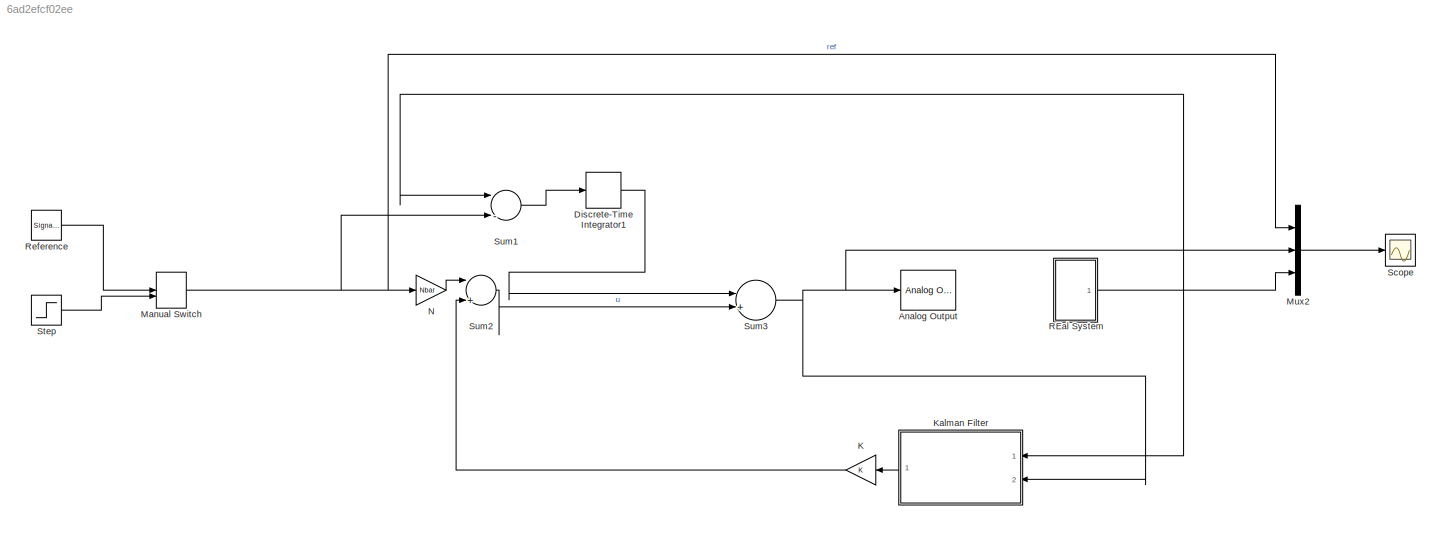
MODEL slx_6ad2efcf02ee
KIND model
CONFIG AbsTol = auto
CONFIG FixedStep = auto
CONFIG MaxStep = auto
CONFIG MinStep = auto
CONFIG RelTol = 1e-3
CONFIG SampleTimeConstraint = Unconstrained
CONFIG Solver = ode3
CONFIG SolverMode = Auto
CONFIG SolverName = ode3
CONFIG StartTime = 0.0
CONFIG StopTime = 30.0
BLOCK [Reference] Analog Output  REF=sldrtlib/Analog Output
  AttributesFormatString = National Instruments\nPCI-MIO-16E-4 [auto]
  Channels = 1
  DrvAddress = 4294967295
  DrvName = National_Instruments/PCI-MIO-16E-4
  DrvOptions = [0 0 0 0 0 0]
  FinalValue = 0
  InitialValue = 0
  MaxMissedTicks = 10
  Ports = [1]
  RangeMode = 1
  SampleTime = 0.001
  ShowMissedTicks = off
  SourceBlock = sldrtlib/Analog Output
  SourceType = Simulink Desktop Real-Time Analog Output
  VoltRange = 1
  YieldWhenWaiting = off
BLOCK [DiscreteIntegrator] Discrete-Time Integrator1
  InitialConditionSetting = State (most efficient)
  Ports = [1, 1]
  SampleTime = 0.001
  gainval = 0.05
BLOCK [Gain] K
  Gain = K
  Multiplication = Matrix(K*u)
  OutDataTypeStr = Inherit: Inherit via internal rule
  ParamDataTypeStr = Inherit: Inherit via internal rule
  SaturateOnIntegerOverflow = off
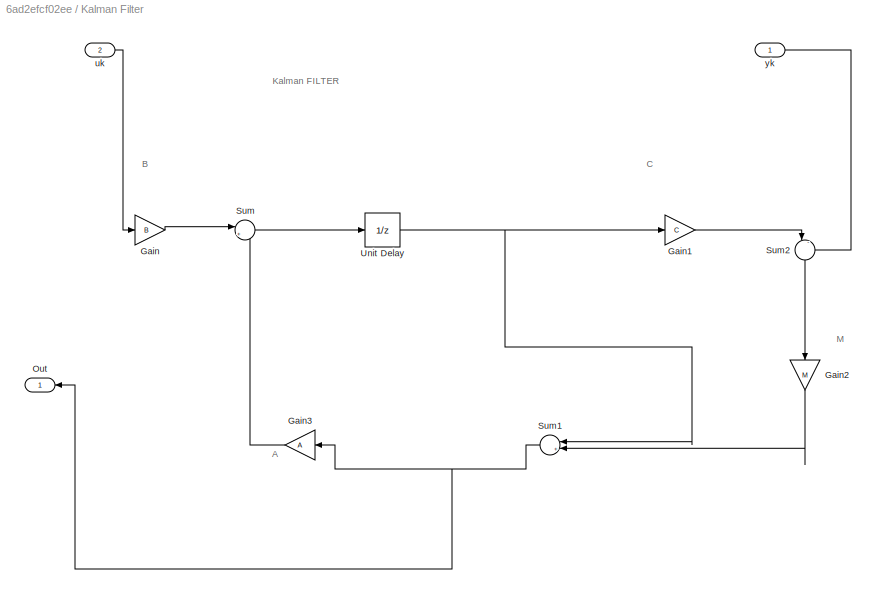
BLOCK [SubSystem] Kalman Filter
  Ports = [2, 1]
  RequestExecContextInheritance = off
BLOCK [Gain] Kalman Filter/Gain
  Gain = B
  Multiplication = Matrix(K*u)
  OutDataTypeStr = Inherit: Inherit via internal rule
  ParamDataTypeStr = Inherit: Inherit via internal rule
  SaturateOnIntegerOverflow = off
BLOCK [Gain] Kalman Filter/Gain1
  Gain = C
  Multiplication = Matrix(K*u)
  OutDataTypeStr = Inherit: Inherit via internal rule
  ParamDataTypeStr = Inherit: Inherit via internal rule
  SaturateOnIntegerOverflow = off
BLOCK [Gain] Kalman Filter/Gain2
  Gain = M
  Multiplication = Matrix(K*u)
  OutDataTypeStr = Inherit: Inherit via internal rule
  ParamDataTypeStr = Inherit: Inherit via internal rule
  SaturateOnIntegerOverflow = off
BLOCK [Gain] Kalman Filter/Gain3
  Gain = A
  Multiplication = Matrix(K*u)
  OutDataTypeStr = Inherit: Inherit via internal rule
  ParamDataTypeStr = Inherit: Inherit via internal rule
  SaturateOnIntegerOverflow = off
BLOCK [Outport] Kalman Filter/Out
  IconDisplay = Port number
BLOCK [Sum] Kalman Filter/Sum
  IconShape = round
  InputSameDT = off
  Inputs = |++
  OutDataTypeStr = Inherit: Inherit via internal rule
  Ports = [2, 1]
  SaturateOnIntegerOverflow = off
BLOCK [Sum] Kalman Filter/Sum1
  IconShape = round
  InputSameDT = off
  Inputs = |++
  OutDataTypeStr = Inherit: Inherit via internal rule
  Ports = [2, 1]
  SaturateOnIntegerOverflow = off
BLOCK [Sum] Kalman Filter/Sum2
  IconShape = round
  InputSameDT = off
  Inputs = |-+
  OutDataTypeStr = Inherit: Inherit via internal rule
  Ports = [2, 1]
  SaturateOnIntegerOverflow = off
BLOCK [UnitDelay] Kalman Filter/Unit Delay
  InputProcessing = Elements as channels (sample based)
  SampleTime = -1
BLOCK [Inport] Kalman Filter/uk 
  IconDisplay = Port number
  Port = 2
BLOCK [Inport] Kalman Filter/yk 
  IconDisplay = Port number
BLOCK [ManualSwitch] Manual Switch
  CurrentSetting = 0
BLOCK [Mux] Mux2
  DisplayOption = bar
  Inputs = 3
  Ports = [3, 1]
BLOCK [Gain] N
  Gain = Nbar
  OutDataTypeStr = Inherit: Inherit via internal rule
  ParamDataTypeStr = Inherit: Inherit via internal rule
  SaturateOnIntegerOverflow = off
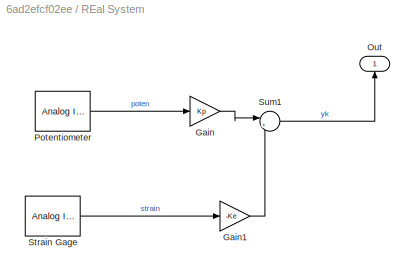
BLOCK [SubSystem] REal System 
  Ports = [0, 1]
  RequestExecContextInheritance = off
BLOCK [Gain] REal System /Gain
  Gain = Kp
  OutDataTypeStr = Inherit: Inherit via internal rule
  ParamDataTypeStr = Inherit: Inherit via internal rule
  SaturateOnIntegerOverflow = off
BLOCK [Gain] REal System /Gain1
  Gain = -Ke
  OutDataTypeStr = Inherit: Inherit via internal rule
  ParamDataTypeStr = Inherit: Inherit via internal rule
  SaturateOnIntegerOverflow = off
BLOCK [Outport] REal System /Out
  IconDisplay = Port number
BLOCK [Reference] REal System /Potentiometer  REF=sldrtlib/Analog Input
  AttributesFormatString = National Instruments\nPCI-MIO-16E-4 [auto]
  Channels = 1
  DataType = 1
  DrvAddress = 4294967295
  DrvName = National_Instruments/PCI-MIO-16E-4
  DrvOptions = [0 0 0 0 0 0]
  MaxMissedTicks = 10
  Ports = [0, 1]
  RangeMode = 1
  SampleTime = 0.001
  ShowMissedTicks = off
  SourceBlock = sldrtlib/Analog Input
  SourceType = Simulink Desktop Real-Time Analog Input
  VoltRange = 1
  YieldWhenWaiting = off
BLOCK [Reference] REal System /Strain Gage  REF=sldrtlib/Analog Input
  AttributesFormatString = National Instruments\nPCI-MIO-16E-4 [auto]
  Channels = 2
  DataType = 1
  DrvAddress = 4294967295
  DrvName = National_Instruments/PCI-MIO-16E-4
  DrvOptions = [0 0 0 0 0 0]
  MaxMissedTicks = 10
  Ports = [0, 1]
  RangeMode = 1
  SampleTime = 0.001
  ShowMissedTicks = off
  SourceBlock = sldrtlib/Analog Input
  SourceType = Simulink Desktop Real-Time Analog Input
  VoltRange = 1
  YieldWhenWaiting = off
BLOCK [Sum] REal System /Sum1
  IconShape = round
  InputSameDT = off
  Inputs = |++
  OutDataTypeStr = Inherit: Inherit via internal rule
  Ports = [2, 1]
  SaturateOnIntegerOverflow = off
BLOCK [SignalGenerator] Reference
  Amplitude = 30
  Frequency = 0.2
  Ports = [0, 1]
  WaveForm = square
BLOCK [Scope] Scope
  Floating = off
  LegendLocations = 0.072396     0.52834     0.09375    0.055258
  LimitDataPoints = off
  NumInputPorts = 1
  Ports = [1]
  ShowLegends = on
  YMax = 35
  YMin = -35
BLOCK [Step] Step
  After = 20
  SampleTime = 0.001
BLOCK [Sum] Sum1
  InputSameDT = off
  Inputs = |-+
  OutDataTypeStr = Inherit: Inherit via internal rule
  Ports = [2, 1]
  SaturateOnIntegerOverflow = off
BLOCK [Sum] Sum2
  InputSameDT = off
  Inputs = |+-
  OutDataTypeStr = Inherit: Inherit via internal rule
  Ports = [2, 1]
  SaturateOnIntegerOverflow = off
BLOCK [Sum] Sum3
  IconShape = round
  InputSameDT = off
  Inputs = |++
  OutDataTypeStr = Inherit: Inherit via internal rule
  Ports = [2, 1]
  SaturateOnIntegerOverflow = off
ANNOTATION Kalman Filter: A
ANNOTATION Kalman Filter: B
ANNOTATION Kalman Filter: C
ANNOTATION Kalman Filter: Kalman FILTER
ANNOTATION Kalman Filter: M
LINE Discrete-Time Integrator1:1 -> Sum3:1
LINE K:1 -> Sum2:2
LINE Kalman Filter/Gain1:1 -> Kalman Filter/Sum2:1
LINE Kalman Filter/Gain2:1 -> Kalman Filter/Sum1:2
LINE Kalman Filter/Gain3:1 -> Kalman Filter/Sum:2
LINE Kalman Filter/Gain:1 -> Kalman Filter/Sum:1
NET Kalman Filter/Sum1:1 -> Kalman Filter/Gain3:1, Kalman Filter/Out:1
LINE Kalman Filter/Sum2:1 -> Kalman Filter/Gain2:1
LINE Kalman Filter/Sum:1 -> Kalman Filter/Unit Delay:1
NET Kalman Filter/Unit Delay:1 -> Kalman Filter/Gain1:1, Kalman Filter/Sum1:1
LINE Kalman Filter/uk :1 -> Kalman Filter/Gain:1
LINE Kalman Filter/yk :1 -> Kalman Filter/Sum2:2
LINE Kalman Filter:1 -> K:1
NET Manual Switch:1 -> Mux2:1, N:1, Sum1:2
LINE Mux2:1 -> Scope:1
LINE N:1 -> Sum2:1
LINE REal System /Gain1:1 -> REal System /Sum1:2
LINE REal System /Gain:1 -> REal System /Sum1:1
LINE REal System /Potentiometer:1 -> REal System /Gain:1
LINE REal System /Strain Gage:1 -> REal System /Gain1:1
LINE REal System /Sum1:1 -> REal System /Out:1
NET REal System :1 -> Kalman Filter:1, Mux2:3, Sum1:1
LINE Reference:1 -> Manual Switch:1
LINE Step:1 -> Manual Switch:2
LINE Sum1:1 -> Discrete-Time Integrator1:1
LINE Sum2:1 -> Sum3:2
NET Sum3:1 -> Analog Output:1, Kalman Filter:2, Mux2:2
note: NET lines group one-source signal fan-out (src -> all destinations, sorted); 1:1 wires keep LINE
